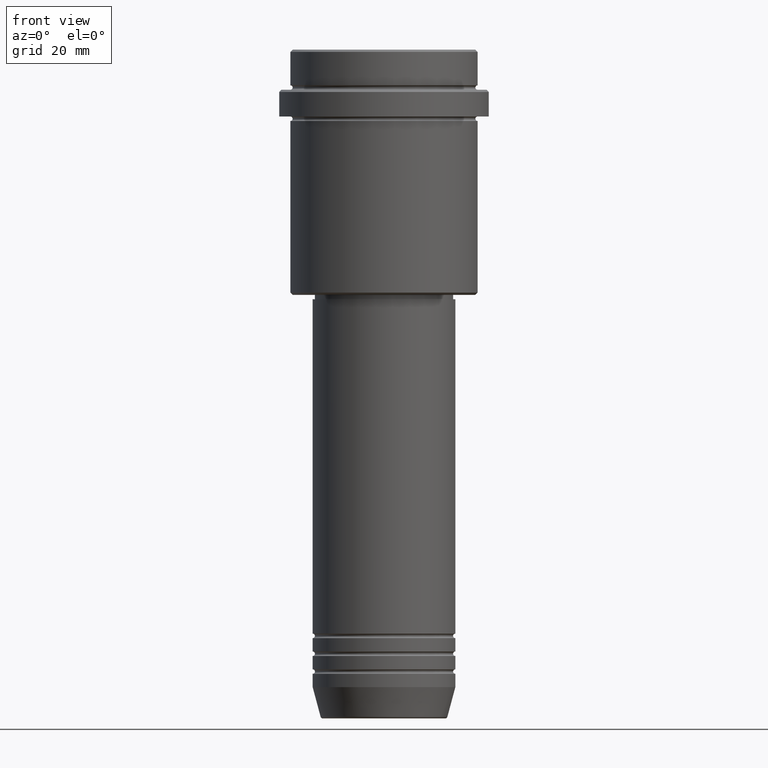
[diagram: clean part render]
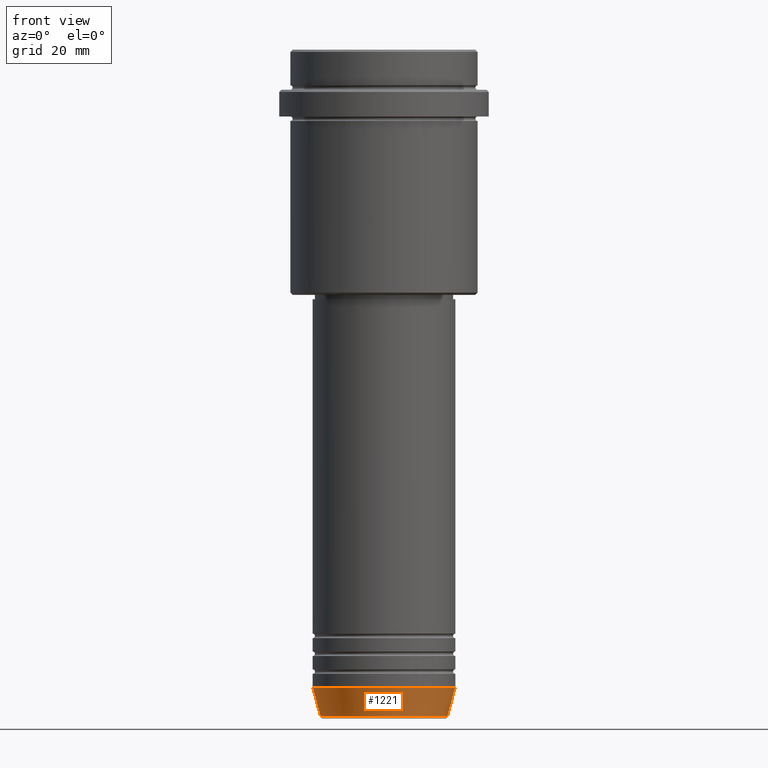
[diagram: same view with one face highlighted and labeled with its STEP entity id]
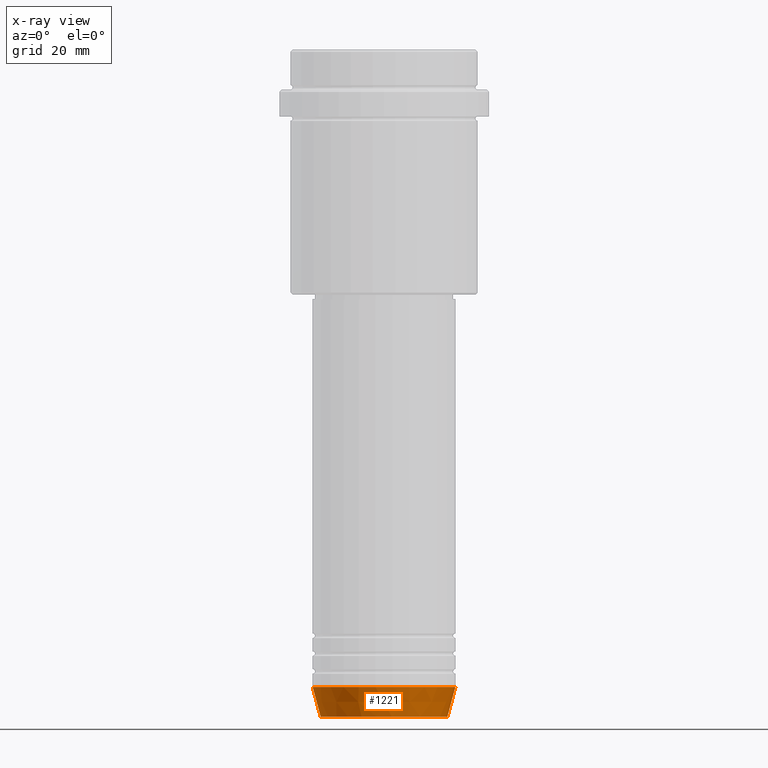
[diagram: x-ray of the same camera — body ghosted, the highlighted face saturated]
A machine part, front view. The second image highlights one B-rep face of the part: STEP entity #1221.
The next image is the same camera in x-ray: the body ghosted, the highlighted face saturated — about 0% of this face is hidden behind the body in this view.
In plain terms, the highlighted conical surface has half-angle 15 deg.
Its self-contained STEP definition (entity closure, byte-faithful):
#77 = AXIS2_PLACEMENT_3D ( 'NONE', #691, #1352, #821 ) ;
#138 = CARTESIAN_POINT ( 'NONE',  ( 14.22365507213719482, 0.000000000000000000, -149.6294095225512137 ) ) ;
#279 = ORIENTED_EDGE ( 'NONE', *, *, #956, .F. ) ;
#283 = DIRECTION ( 'NONE',  ( -0.2588190451025222938, 3.169619151431783430E-17, 0.9659258262890678681 ) ) ;
#312 = EDGE_LOOP ( 'NONE', ( #279, #1014, #406, #874 ) ) ;
#406 = ORIENTED_EDGE ( 'NONE', *, *, #569, .T. ) ;
#451 = CARTESIAN_POINT ( 'NONE',  ( 16.00000000000000000, 0.000000000000000000, -143.0000000000000000 ) ) ;
#479 = CARTESIAN_POINT ( 'NONE',  ( 0.000000000000000000, 0.000000000000000000, -143.0000000000000000 ) ) ;
#515 = EDGE_CURVE ( 'NONE', #991, #537, #1207, .T. ) ;
#537 = VERTEX_POINT ( 'NONE', #451 ) ;
#569 = EDGE_CURVE ( 'NONE', #702, #537, #987, .T. ) ;
#599 = CARTESIAN_POINT ( 'NONE',  ( -14.22365507213719660, 1.850665122131324520E-15, -149.6294095225512137 ) ) ;
#691 = CARTESIAN_POINT ( 'NONE',  ( 0.000000000000000000, 0.000000000000000000, -149.6294095225512137 ) ) ;
#702 = VERTEX_POINT ( 'NONE', #138 ) ;
#739 = CARTESIAN_POINT ( 'NONE',  ( -16.00000000000000000, 1.959434878635765131E-15, -143.0000000000000000 ) ) ;
#743 = EDGE_CURVE ( 'NONE', #948, #702, #1139, .T. ) ;
#781 = DIRECTION ( 'NONE',  ( -0.000000000000000000, -0.000000000000000000, 1.000000000000000000 ) ) ;
#790 = DIRECTION ( 'NONE',  ( -0.000000000000000000, -0.000000000000000000, 1.000000000000000000 ) ) ;
#794 = CARTESIAN_POINT ( 'NONE',  ( 0.000000000000000000, 0.000000000000000000, -143.0000000000000000 ) ) ;
#821 = DIRECTION ( 'NONE',  ( 1.000000000000000000, 0.000000000000000000, 0.000000000000000000 ) ) ;
#874 = ORIENTED_EDGE ( 'NONE', *, *, #515, .F. ) ;
#902 = DIRECTION ( 'NONE',  ( 0.2588190451025222938, 0.000000000000000000, 0.9659258262890678681 ) ) ;
#948 = VERTEX_POINT ( 'NONE', #599 ) ;
#956 = EDGE_CURVE ( 'NONE', #948, #991, #1375, .T. ) ;
#962 = CARTESIAN_POINT ( 'NONE',  ( -16.00000000000000000, 1.959434878635765131E-15, -143.0000000000000000 ) ) ;
#973 = AXIS2_PLACEMENT_3D ( 'NONE', #794, #781, #1231 ) ;
#987 = LINE ( 'NONE', #1331, #1297 ) ;
#991 = VERTEX_POINT ( 'NONE', #739 ) ;
#1014 = ORIENTED_EDGE ( 'NONE', *, *, #743, .T. ) ;
#1139 = CIRCLE ( 'NONE', #77, 14.22365507213719482 ) ;
#1141 = CONICAL_SURFACE ( 'NONE', #1340, 16.00000000000000000, 0.2617993877991510177 ) ;
#1207 = CIRCLE ( 'NONE', #973, 16.00000000000000000 ) ;
#1221 = ADVANCED_FACE ( 'NONE', ( #1328 ), #1141, .T. ) ;
#1223 = DIRECTION ( 'NONE',  ( 1.000000000000000000, 0.000000000000000000, 0.000000000000000000 ) ) ;
#1231 = DIRECTION ( 'NONE',  ( 1.000000000000000000, 0.000000000000000000, 0.000000000000000000 ) ) ;
#1297 = VECTOR ( 'NONE', #902, 1000.000000000000000 ) ;
#1328 = FACE_OUTER_BOUND ( 'NONE', #312, .T. ) ;
#1331 = CARTESIAN_POINT ( 'NONE',  ( 16.00000000000000000, 0.000000000000000000, -143.0000000000000000 ) ) ;
#1340 = AXIS2_PLACEMENT_3D ( 'NONE', #479, #790, #1223 ) ;
#1352 = DIRECTION ( 'NONE',  ( -0.000000000000000000, -0.000000000000000000, 1.000000000000000000 ) ) ;
#1375 = LINE ( 'NONE', #962, #1384 ) ;
#1384 = VECTOR ( 'NONE', #283, 1000.000000000000000 ) ;